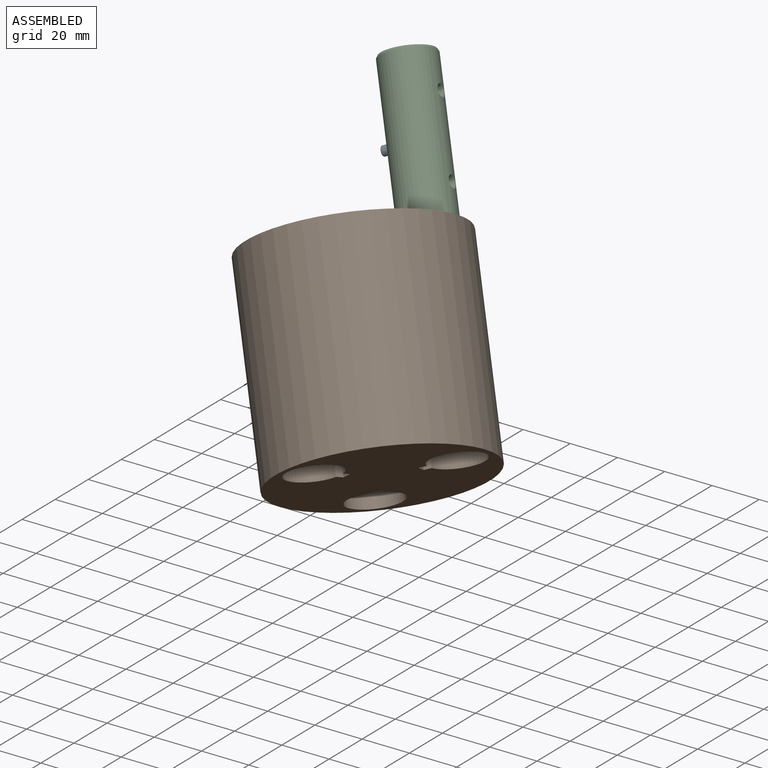
[diagram: assembled view]
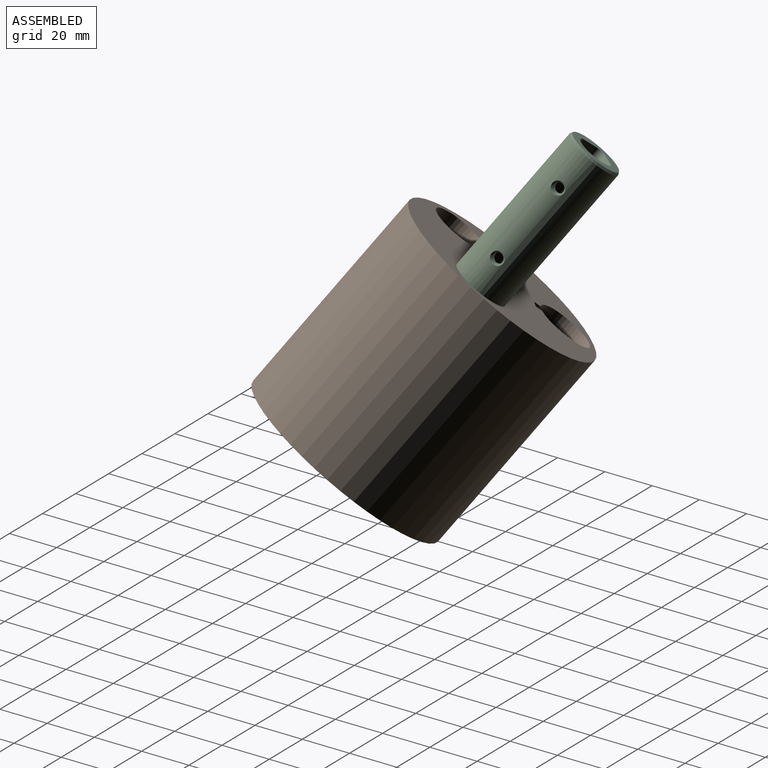
[diagram: assembled view, second angle]
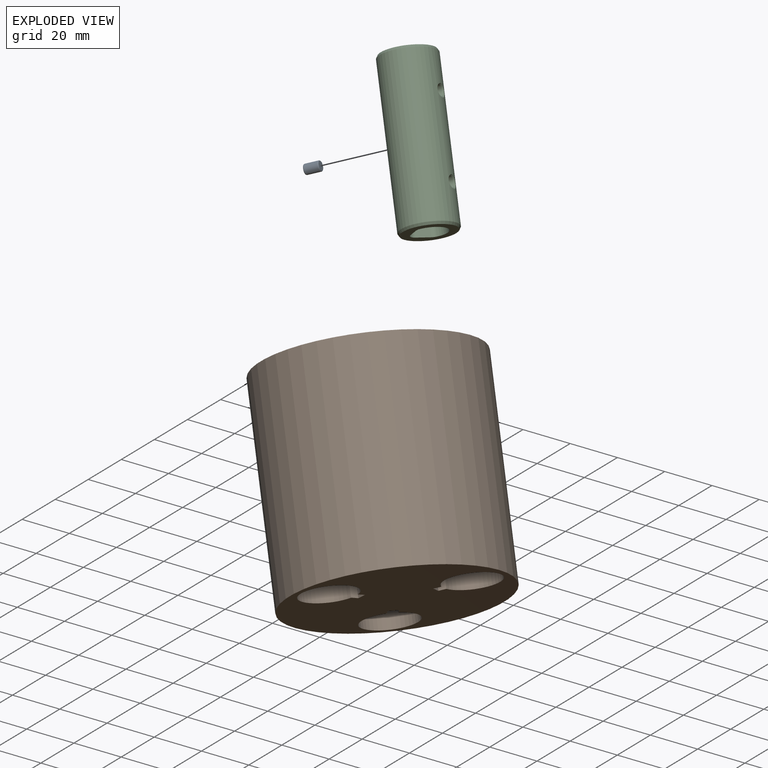
[diagram: exploded view]
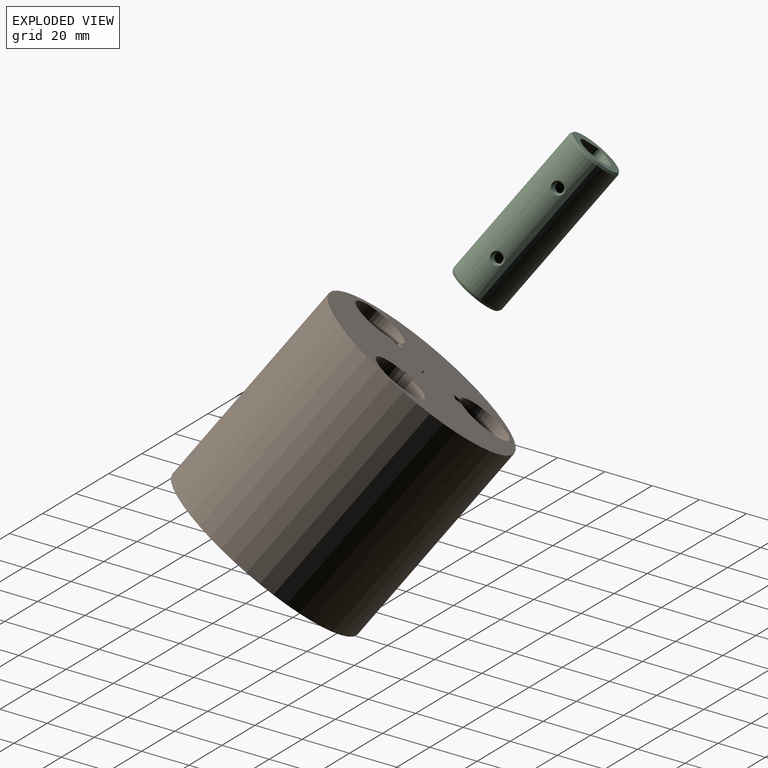
[diagram: exploded view, second angle]
ASSEMBLY  parts=3 mates=2
PART A: 5 faces, bbox 6x4x4 mm
  f0: cylinder r=2mm len=5.5mm, axis (-1,0,0), area 69.1mm2, adj f3,f4
  f1: plane 3.71x3.71mm, normal (1,0,0), area 10.8mm2, adj f4
  f2: plane 3.71x3.71mm, normal (-1,0,0), area 10.8mm2, adj f3
  f3: cone r=2mm half-angle=30deg, axis (1,0,0), area 3.5mm2, adj f0,f2
  f4: cone r=1.86mm half-angle=30deg, axis (-1,0,0), area 3.5mm2, adj f0,f1
PART B: 15 faces, bbox 85x85x85 mm
  f0: cylinder r=42.5mm len=85mm, axis (0,0,-1), area 22698mm2, adj f1,f2
  f1: plane 85x85mm, normal (0,0,1), area 4474.4mm2, adj f0,f3,f4,f5,f6,f7,f8,f9
  f2: plane 85x85mm, normal (0,0,-1), area 4474.4mm2, adj f0,f3,f4,f5,f6,f7,f8,f9
  f3: plane 85x3.08mm, normal (0,1,0), area 261.6mm2, adj f1,f2,f4,f6
  f4: cylinder r=11.11mm len=85mm, axis (0,0,1), area 5584.4mm2, adj f1,f2,f3,f5
  f5: plane 85x3.08mm, normal (0,-1,0), area 261.6mm2, adj f1,f2,f4,f6
  f6: plane 85x4.1mm, normal (1,0,0), area 348.5mm2, adj f1,f2,f3,f5
  f7: plane 85x2.67mm, normal (-0.87,-0.5,0), area 261.6mm2, adj f1,f2,f8,f10
  f8: cylinder r=11.11mm len=85mm, axis (0,0,1), area 5584.4mm2, adj f1,f2,f7,f9
  f9: plane 85x2.67mm, normal (0.87,0.5,0), area 261.6mm2, adj f1,f2,f8,f10
  f10: plane 85x3.55mm, normal (-0.5,0.87,0), area 348.5mm2, adj f1,f2,f7,f9
  f11: plane 85x2.67mm, normal (0.87,-0.5,0), area 261.6mm2, adj f1,f2,f12,f14
  f12: cylinder r=11.11mm len=85mm, axis (0,0,1), area 5584.4mm2, adj f1,f2,f11,f13
  f13: plane 85x2.67mm, normal (-0.87,0.5,0), area 261.6mm2, adj f1,f2,f12,f14
  f14: plane 85x3.55mm, normal (-0.5,-0.87,0), area 348.5mm2, adj f1,f2,f11,f13
PART C: 17 faces, bbox 22.2x22.2x65 mm
  f0: cylinder r=11.11mm len=63mm, axis (0,0,-1), area 4341.3mm2, adj f9,f10,f11,f12,f13
  f1: cylinder r=7mm len=65mm, axis (0,0,-1), area 1458.4mm2, adj f5,f6,f7,f8,f15,f16
  f2: plane 65x3.99mm, normal (0.71,0.71,0), area 367mm2, adj f3,f5,f6,f15
  f3: cylinder r=3mm len=65mm, axis (0,0,-1), area 306.3mm2, adj f2,f4,f5,f6
  f4: plane 65x3.99mm, normal (0.71,-0.71,0), area 367mm2, adj f3,f5,f6,f16
  f5: plane 21.07x21.07mm, normal (0,0,1), area 204.3mm2, adj f1,f2,f3,f4,f12,f15,f16
  f6: plane 21.07x21.07mm, normal (0,0,-1), area 204.3mm2, adj f1,f2,f3,f4,f11,f15,f16
  f7: cylinder r=2.1mm len=4.2mm, axis (1,0,0), area 47.7mm2, adj f1,f10
  f8: cylinder r=2.1mm len=4.2mm, axis (1,0,0), area 47.7mm2, adj f1,f9
  f9: bspline ~5.44x5.19mm, area 11.2mm2, adj f0,f8
  f10: bspline ~5.44x5.19mm, area 11.2mm2, adj f0,f7
  f11: cone r=11.11mm half-angle=30deg, axis (0,0,1), area 78.5mm2, adj f0,f6
  f12: cone r=10.54mm half-angle=30deg, axis (0,0,-1), area 78.5mm2, adj f0,f5
  f13: cylinder r=2mm len=4mm, axis (-1,0,0), area 39.1mm2, adj f0,f14
  f14: plane 4x4mm, normal (-1,0,0), area 12.6mm2, adj f13
  f15: cylinder r=3mm len=65mm, axis (0,0,-1), area 140.9mm2, adj f1,f2,f5,f6
  f16: cylinder r=3mm len=65mm, axis (0,0,-1), area 140.9mm2, adj f1,f4,f5,f6
PLACE A rot(axis=(-0.1,0.96,-0.27),154.7deg) t=(38.26,50.05,118.73)mm
PLACE B rot(axis=(-0.74,-0.61,0.28),42.3deg) t=(72.65,-8.84,23.91)mm fixed
PLACE C rot(axis=(0.97,0.1,0.23),148.9deg) t=(30.06,67.25,146.18)mm
MATE fastened A.f0 <-> C.f13  axis (0.88,0.31,0.36) through (38.04,49.98,118.64)mm
MATE slider C.f1 <-> B.f4  axis (-0.46,0.46,0.76) through (30.06,67.25,146.18)mm
